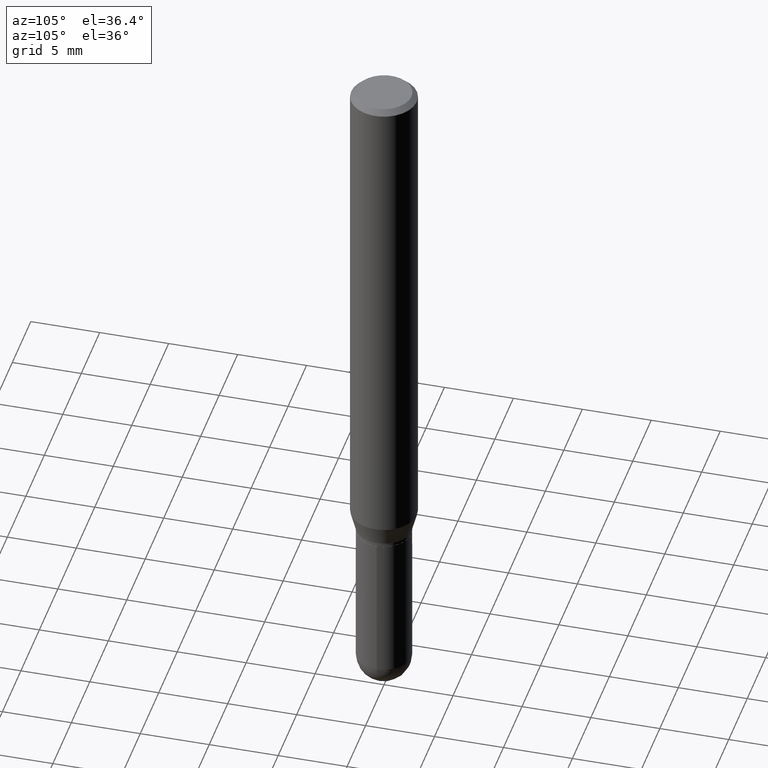
[diagram: clean part render]
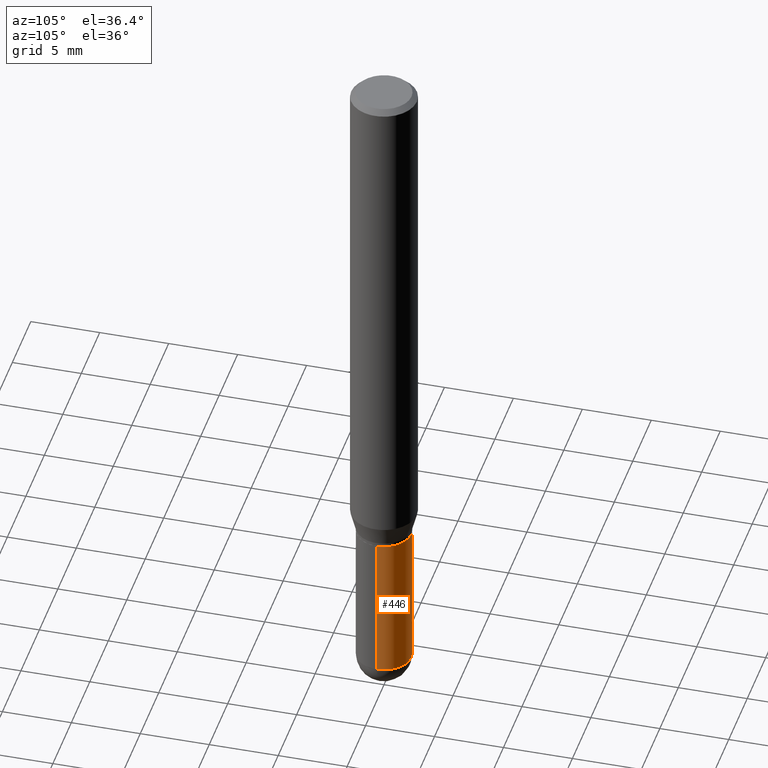
[diagram: same view with one face highlighted and labeled with its STEP entity id]
A machine part, auxiliary view. The second image highlights one B-rep face of the part: STEP entity #446.
In plain terms, the highlighted cylindrical surface (edge-blend (fillet) strip) has radius 1.9837 mm, axis along (-0, 0, 1).
Its self-contained STEP definition (entity closure, byte-faithful):
#19 = CARTESIAN_POINT ( 'NONE',  ( 0.07810000000000000275, -5.453693851272974364E-16, 3.808294061896625703E-30 ) ) ;
#36 = ORIENTED_EDGE ( 'NONE', *, *, #260, .T. ) ;
#39 = CARTESIAN_POINT ( 'NONE',  ( 4.699946498607214373E-29, -6.710277985122641264E-15, -1.921900000000000164 ) ) ;
#53 = EDGE_CURVE ( 'NONE', #348, #100, #97, .T. ) ;
#97 = CIRCLE ( 'NONE', #264, 0.07810000000000000275 ) ;
#100 = VERTEX_POINT ( 'NONE', #353 ) ;
#137 = VERTEX_POINT ( 'NONE', #202 ) ;
#145 = DIRECTION ( 'NONE',  ( 1.000000000000000000, -6.982962677686266711E-15, 0.000000000000000000 ) ) ;
#166 = EDGE_LOOP ( 'NONE', ( #309, #36, #336, #258, #303 ) ) ;
#171 = DIRECTION ( 'NONE',  ( -2.445468806185136877E-29, 3.491481338843145188E-15, 1.000000000000000000 ) ) ;
#174 = FACE_OUTER_BOUND ( 'NONE', #166, .T. ) ;
#176 = CIRCLE ( 'NONE', #478, 0.07810000000000000275 ) ;
#202 = CARTESIAN_POINT ( 'NONE',  ( 5.453693851273441764E-16, 0.07809999999999325815, -1.921900000000000386 ) ) ;
#203 = CARTESIAN_POINT ( 'NONE',  ( 4.699946498607214373E-29, -6.710277985122641264E-15, -1.921900000000000164 ) ) ;
#208 = CARTESIAN_POINT ( 'NONE',  ( -0.07810000000000000275, 5.549338766286382647E-16, -3.841688305489081275E-30 ) ) ;
#246 = DIRECTION ( 'NONE',  ( 1.000000000000000000, -6.982962677686266711E-15, 0.000000000000000000 ) ) ;
#258 = ORIENTED_EDGE ( 'NONE', *, *, #313, .F. ) ;
#260 = EDGE_CURVE ( 'NONE', #379, #100, #454, .T. ) ;
#261 = CARTESIAN_POINT ( 'NONE',  ( 0.000000000000000000, 0.000000000000000000, 0.000000000000000000 ) ) ;
#262 = DIRECTION ( 'NONE',  ( -2.445468806185136877E-29, 3.491481338843145188E-15, 1.000000000000000000 ) ) ;
#264 = AXIS2_PLACEMENT_3D ( 'NONE', #383, #344, #145 ) ;
#275 = DIRECTION ( 'NONE',  ( 1.000000000000000000, -6.982962677686266711E-15, 4.876176775795935232E-29 ) ) ;
#277 = CARTESIAN_POINT ( 'NONE',  ( 0.07810000000000000275, -6.519119381820976762E-15, -1.921900000000000164 ) ) ;
#303 = ORIENTED_EDGE ( 'NONE', *, *, #337, .T. ) ;
#309 = ORIENTED_EDGE ( 'NONE', *, *, #489, .T. ) ;
#313 = EDGE_CURVE ( 'NONE', #472, #348, #372, .T. ) ;
#315 = DIRECTION ( 'NONE',  ( -2.445468806185136597E-29, 3.491481338843145583E-15, 1.000000000000000000 ) ) ;
#317 = AXIS2_PLACEMENT_3D ( 'NONE', #261, #315, #275 ) ;
#336 = ORIENTED_EDGE ( 'NONE', *, *, #53, .F. ) ;
#337 = EDGE_CURVE ( 'NONE', #472, #137, #356, .T. ) ;
#344 = DIRECTION ( 'NONE',  ( -2.445468806185136597E-29, 3.491481338843145583E-15, 1.000000000000000000 ) ) ;
#348 = VERTEX_POINT ( 'NONE', #401 ) ;
#353 = CARTESIAN_POINT ( 'NONE',  ( -0.07810000000000000275, -5.418816120065042244E-15, -1.500000000000000222 ) ) ;
#356 = CIRCLE ( 'NONE', #484, 0.07810000000000000275 ) ;
#372 = LINE ( 'NONE', #19, #416 ) ;
#379 = VERTEX_POINT ( 'NONE', #488 ) ;
#383 = CARTESIAN_POINT ( 'NONE',  ( 3.668203209277704895E-29, -5.237222008264718177E-15, -1.500000000000000222 ) ) ;
#384 = VECTOR ( 'NONE', #262, 39.37007874015748143 ) ;
#401 = CARTESIAN_POINT ( 'NONE',  ( 0.07810000000000000275, -5.782591393392015613E-15, -1.500000000000000222 ) ) ;
#405 = DIRECTION ( 'NONE',  ( -2.445468806185136597E-29, 3.491481338843145583E-15, 1.000000000000000000 ) ) ;
#416 = VECTOR ( 'NONE', #171, 39.37007874015748143 ) ;
#433 = DIRECTION ( 'NONE',  ( -2.445468806185136597E-29, 3.491481338843145583E-15, 1.000000000000000000 ) ) ;
#435 = DIRECTION ( 'NONE',  ( 1.000000000000000000, -6.982962677686266711E-15, 0.000000000000000000 ) ) ;
#446 = ADVANCED_FACE ( 'NONE', ( #174 ), #456, .T. ) ;
#454 = LINE ( 'NONE', #208, #384 ) ;
#456 = CYLINDRICAL_SURFACE ( 'NONE', #317, 0.07810000000000000275 ) ;
#472 = VERTEX_POINT ( 'NONE', #277 ) ;
#478 = AXIS2_PLACEMENT_3D ( 'NONE', #39, #433, #435 ) ;
#484 = AXIS2_PLACEMENT_3D ( 'NONE', #203, #405, #246 ) ;
#488 = CARTESIAN_POINT ( 'NONE',  ( -0.07810000000000000275, -5.418816120065042244E-15, -1.921900000000000164 ) ) ;
#489 = EDGE_CURVE ( 'NONE', #137, #379, #176, .T. ) ;